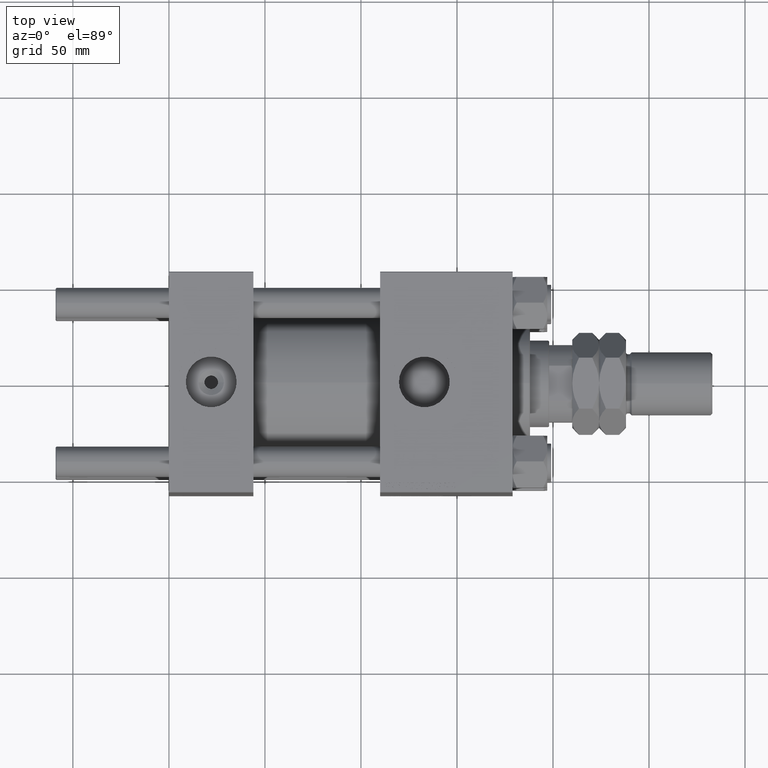
[diagram: clean part render]
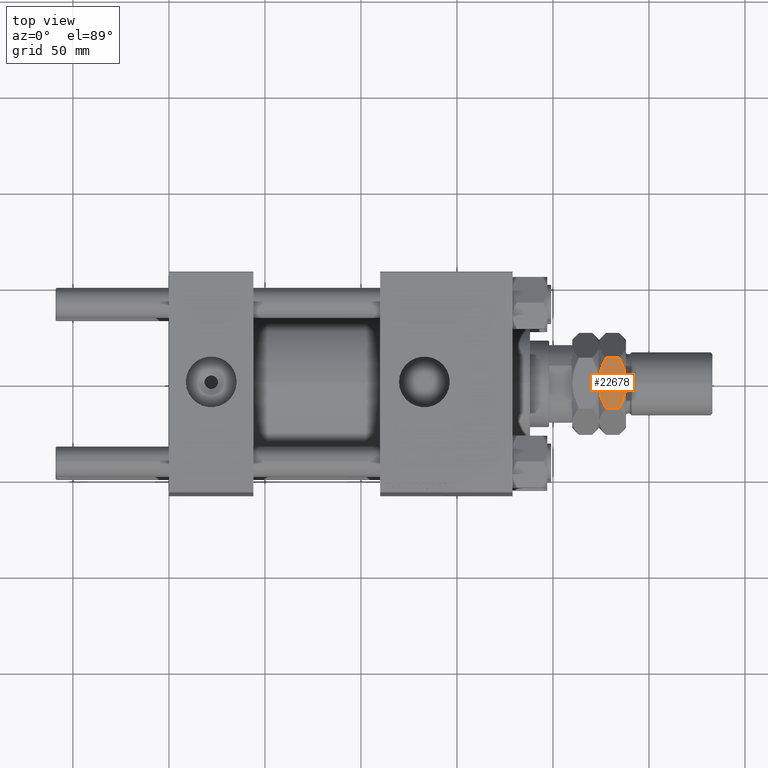
[diagram: same view with one face highlighted and labeled with its STEP entity id]
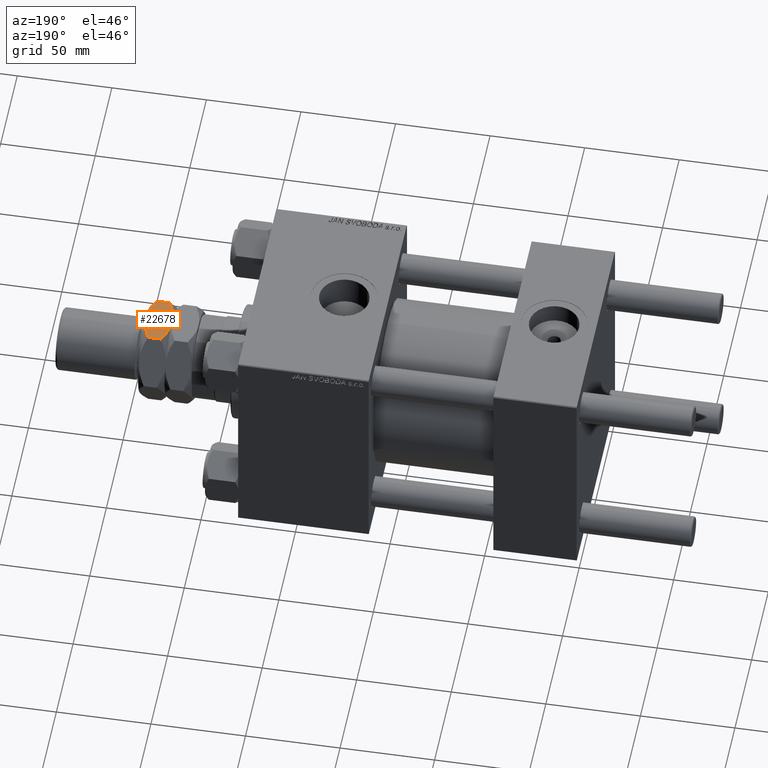
[diagram: same view with one face highlighted and labeled with its STEP entity id]
A machine part, top view. The second image highlights one B-rep face of the part: STEP entity #22678.
A second angle (auxiliary view) of the same face is appended — the face is thin or edge-on in the first view.
In plain terms, the highlighted planar face has unit normal (-0, 0, -1).
Its self-contained STEP definition (entity closure, byte-faithful):
#94 = VERTEX_POINT ( 'NONE', #17463 ) ;
#1394 = CARTESIAN_POINT ( 'NONE',  ( -23.00000000000000355, -11.19584287463890782, 25.43887941699775368 ) ) ;
#2369 = CARTESIAN_POINT ( 'NONE',  ( -23.00000000000000711, -7.384104261058126895, 15.15038048687418559 ) ) ;
#3577 = B_SPLINE_CURVE_WITH_KNOTS ( 'NONE', 3,
 ( #14829, #10732, #51657, #9916, #27394, #6098, #38849, #14282, #26303, #43739, #18123, #39119 ),
 .UNSPECIFIED., .F., .F.,
 ( 4, 2, 2, 2, 2, 4 ),
 ( 0.04777139595992687532, 0.04949914554651194121, 0.05122689513309700016, 0.05468239430626712499, 0.05813789347943724983, 0.06159339265260737467 ),
 .UNSPECIFIED. ) ;
#4446 = AXIS2_PLACEMENT_3D ( 'NONE', #38325, #30154, #14025 ) ;
#4813 = LINE ( 'NONE', #12750, #44047 ) ;
#4931 = CARTESIAN_POINT ( 'NONE',  ( -23.00000000000000000, -13.27905619136138959, 24.44188761727722436 ) ) ;
#5293 = FACE_OUTER_BOUND ( 'NONE', #47588, .T. ) ;
#5776 = VERTEX_POINT ( 'NONE', #29137 ) ;
#6098 = CARTESIAN_POINT ( 'NONE',  ( -23.00000000000000355, 4.611258391204995810, 14.43061535182026667 ) ) ;
#6727 = CARTESIAN_POINT ( 'NONE',  ( -22.99999999999999645, 3.004629197474316090E-15, 14.00000000000000000 ) ) ;
#7253 = VERTEX_POINT ( 'NONE', #32930 ) ;
#7661 = CARTESIAN_POINT ( 'NONE',  ( -23.00000000000000000, 13.27905619136138959, 24.44188761727722792 ) ) ;
#7905 = EDGE_CURVE ( 'NONE', #38497, #94, #10017, .T. ) ;
#7937 = B_SPLINE_CURVE_WITH_KNOTS ( 'NONE', 3,
 ( #32103, #10533, #23107, #44084, #48437, #35923, #2369, #19010, #10805, #6727 ),
 .UNSPECIFIED., .F., .F.,
 ( 4, 2, 2, 2, 4 ),
 ( 0.03391842154671734916, 0.03738166515001972723, 0.03911328695167091973, 0.04084490875332210530, 0.04777139595992687532 ),
 .UNSPECIFIED. ) ;
#8374 = DIRECTION ( 'NONE',  ( -0.000000000000000000, -0.000000000000000000, -1.000000000000000000 ) ) ;
#8589 = CARTESIAN_POINT ( 'NONE',  ( -22.99999999999999645, 0.000000000000000000, 28.00000000000000000 ) ) ;
#9289 = CARTESIAN_POINT ( 'NONE',  ( -23.00000000000000711, -0.5819124658698872077, 28.00000000000000000 ) ) ;
#9392 = CARTESIAN_POINT ( 'NONE',  ( -22.99999999999999289, 9.585014738077486385, 26.08755915768734468 ) ) ;
#9916 = CARTESIAN_POINT ( 'NONE',  ( -23.00000000000000000, 2.327345773459499334, 14.11023447772089945 ) ) ;
#10017 = LINE ( 'NONE', #22857, #47533 ) ;
#10533 = CARTESIAN_POINT ( 'NONE',  ( -22.99999999999999289, -12.24963129209448276, 17.04339993308932222 ) ) ;
#10732 = CARTESIAN_POINT ( 'NONE',  ( -23.00000000000001066, 0.5819124658698887620, 14.00000000000000711 ) ) ;
#10805 = CARTESIAN_POINT ( 'NONE',  ( -23.00000000000000355, -2.332866569036886606, 14.00000000000000355 ) ) ;
#11913 = ORIENTED_EDGE ( 'NONE', *, *, #52406, .F. ) ;
#12429 = CARTESIAN_POINT ( 'NONE',  ( -23.00000000000000711, 4.604003285773378806, 27.64082713328069119 ) ) ;
#12750 = CARTESIAN_POINT ( 'NONE',  ( -23.00000000000000000, -13.27905619136138959, 28.00000000000000000 ) ) ;
#13382 = CARTESIAN_POINT ( 'NONE',  ( -22.99999999999999289, -2.327345773459494005, 27.88976552227909878 ) ) ;
#14025 = DIRECTION ( 'NONE',  ( -0.000000000000000000, 0.000000000000000000, -1.000000000000000000 ) ) ;
#14215 = EDGE_CURVE ( 'NONE', #7253, #5776, #7937, .T. ) ;
#14282 = CARTESIAN_POINT ( 'NONE',  ( -23.00000000000000355, 7.945847288453419921, 15.31073039083534226 ) ) ;
#14829 = CARTESIAN_POINT ( 'NONE',  ( -22.99999999999999645, 3.004629197474316090E-15, 14.00000000000000000 ) ) ;
#17316 = CARTESIAN_POINT ( 'NONE',  ( -22.99999999999999645, 11.20010744839417427, 25.43691701641144221 ) ) ;
#17463 = CARTESIAN_POINT ( 'NONE',  ( -23.00000000000000000, 13.27905619136138959, 17.55811238272277564 ) ) ;
#18123 = CARTESIAN_POINT ( 'NONE',  ( -23.00000000000000711, 12.24912306375521531, 17.04314581891969382 ) ) ;
#19010 = CARTESIAN_POINT ( 'NONE',  ( -23.00000000000000355, -4.604003285773385024, 14.35917286671931059 ) ) ;
#21412 = ORIENTED_EDGE ( 'NONE', *, *, #36218, .F. ) ;
#21840 = CARTESIAN_POINT ( 'NONE',  ( -23.00000000000000711, -12.24912306375522242, 24.95685418108031328 ) ) ;
#22396 = CARTESIAN_POINT ( 'NONE',  ( -22.99999999999999645, 0.000000000000000000, 28.00000000000000000 ) ) ;
#22678 = ADVANCED_FACE ( 'NONE', ( #5293 ), #51393, .F. ) ;
#22857 = CARTESIAN_POINT ( 'NONE',  ( -23.00000000000000000, 13.27905619136138959, 28.00000000000000000 ) ) ;
#23107 = CARTESIAN_POINT ( 'NONE',  ( -23.00000000000000000, -11.20010744839417782, 16.56308298358856135 ) ) ;
#24996 = ORIENTED_EDGE ( 'NONE', *, *, #42246, .F. ) ;
#25508 = CARTESIAN_POINT ( 'NONE',  ( -23.00000000000000711, 2.332866569036887938, 27.99999999999999645 ) ) ;
#26303 = CARTESIAN_POINT ( 'NONE',  ( -23.00000000000000355, 9.037287856520078932, 15.69203433471579778 ) ) ;
#27394 = CARTESIAN_POINT ( 'NONE',  ( -23.00000000000000355, 2.901718448039537712, 14.17547147104708571 ) ) ;
#28836 = B_SPLINE_CURVE_WITH_KNOTS ( 'NONE', 3,
 ( #50314, #29618, #17316, #9392, #45963, #41872, #38323, #12429, #25508, #8589 ),
 .UNSPECIFIED., .F., .F.,
 ( 4, 2, 2, 2, 4 ),
 ( 0.03391842154671734916, 0.03738166515001972723, 0.03911328695167091973, 0.04084490875332210530, 0.04777139595992686838 ),
 .UNSPECIFIED. ) ;
#29137 = CARTESIAN_POINT ( 'NONE',  ( -22.99999999999999645, 3.004629197474316090E-15, 14.00000000000000000 ) ) ;
#29618 = CARTESIAN_POINT ( 'NONE',  ( -23.00000000000000000, 12.24963129209447565, 24.95660006691067778 ) ) ;
#30042 = CARTESIAN_POINT ( 'NONE',  ( -23.00000000000000000, -2.901718448039539044, 27.82452852895291429 ) ) ;
#30154 = DIRECTION ( 'NONE',  ( 1.000000000000000000, 0.000000000000000000, -0.000000000000000000 ) ) ;
#30860 = CARTESIAN_POINT ( 'NONE',  ( -23.00000000000000355, -9.037287856520077156, 26.30796566528420399 ) ) ;
#32049 = ORIENTED_EDGE ( 'NONE', *, *, #14215, .F. ) ;
#32103 = CARTESIAN_POINT ( 'NONE',  ( -23.00000000000000000, -13.27905619136138959, 17.55811238272277564 ) ) ;
#32783 = EDGE_CURVE ( 'NONE', #42288, #7253, #4813, .T. ) ;
#32930 = CARTESIAN_POINT ( 'NONE',  ( -23.00000000000000000, -13.27905619136138959, 17.55811238272277564 ) ) ;
#34681 = CARTESIAN_POINT ( 'NONE',  ( -22.99999999999999645, -7.945847288453418145, 26.68926960916466129 ) ) ;
#35923 = CARTESIAN_POINT ( 'NONE',  ( -23.00000000000001066, -7.937214062685167271, 15.32555602763360092 ) ) ;
#36218 = EDGE_CURVE ( 'NONE', #50381, #42288, #46937, .T. ) ;
#38323 = CARTESIAN_POINT ( 'NONE',  ( -22.99999999999999645, 7.384104261058114460, 26.84961951312581618 ) ) ;
#38325 = CARTESIAN_POINT ( 'NONE',  ( -23.00000000000000000, 13.27905619136138959, 28.00000000000000000 ) ) ;
#38497 = VERTEX_POINT ( 'NONE', #7661 ) ;
#38849 = CARTESIAN_POINT ( 'NONE',  ( -23.00000000000000711, 5.732845801352522308, 14.67996292198422736 ) ) ;
#39025 = CARTESIAN_POINT ( 'NONE',  ( -23.00000000000000000, -1.168850493887465758, 27.97756288437166461 ) ) ;
#39119 = CARTESIAN_POINT ( 'NONE',  ( -23.00000000000000000, 13.27905619136138959, 17.55811238272277564 ) ) ;
#41872 = CARTESIAN_POINT ( 'NONE',  ( -23.00000000000000000, 7.937214062685161942, 26.67444397236640086 ) ) ;
#42246 = EDGE_CURVE ( 'NONE', #5776, #94, #3577, .T. ) ;
#42288 = VERTEX_POINT ( 'NONE', #44535 ) ;
#42306 = CARTESIAN_POINT ( 'NONE',  ( -23.00000000000000000, -5.732845801352522308, 27.32003707801577619 ) ) ;
#42584 = ORIENTED_EDGE ( 'NONE', *, *, #7905, .T. ) ;
#43687 = ORIENTED_EDGE ( 'NONE', *, *, #32783, .F. ) ;
#43739 = CARTESIAN_POINT ( 'NONE',  ( -23.00000000000000355, 11.19584287463890959, 16.56112058300224632 ) ) ;
#44047 = VECTOR ( 'NONE', #8374, 1000.000000000000000 ) ;
#44084 = CARTESIAN_POINT ( 'NONE',  ( -22.99999999999999289, -9.585014738077491714, 15.91244084231266420 ) ) ;
#44535 = CARTESIAN_POINT ( 'NONE',  ( -23.00000000000000000, -13.27905619136138959, 24.44188761727722436 ) ) ;
#45963 = CARTESIAN_POINT ( 'NONE',  ( -23.00000000000000000, 9.038140464506012606, 26.29329459371818345 ) ) ;
#46937 = B_SPLINE_CURVE_WITH_KNOTS ( 'NONE', 3,
 ( #22396, #9289, #39025, #13382, #30042, #51557, #42306, #34681, #30860, #1394, #21840, #4931 ),
 .UNSPECIFIED., .F., .F.,
 ( 4, 2, 2, 2, 2, 4 ),
 ( 0.04777139595992686838, 0.04949914554651193427, 0.05122689513309699322, 0.05468239430626712499, 0.05813789347943724983, 0.06159339265260738161 ),
 .UNSPECIFIED. ) ;
#47533 = VECTOR ( 'NONE', #47664, 1000.000000000000000 ) ;
#47588 = EDGE_LOOP ( 'NONE', ( #32049, #43687, #21412, #11913, #42584, #24996 ) ) ;
#47664 = DIRECTION ( 'NONE',  ( -0.000000000000000000, -0.000000000000000000, -1.000000000000000000 ) ) ;
#48437 = CARTESIAN_POINT ( 'NONE',  ( -23.00000000000000355, -9.038140464506014382, 15.70670540628181477 ) ) ;
#50314 = CARTESIAN_POINT ( 'NONE',  ( -23.00000000000000000, 13.27905619136138959, 24.44188761727722792 ) ) ;
#50381 = VERTEX_POINT ( 'NONE', #53746 ) ;
#51393 = PLANE ( 'NONE',  #4446 ) ;
#51557 = CARTESIAN_POINT ( 'NONE',  ( -23.00000000000000355, -4.611258391204997586, 27.56938464817973511 ) ) ;
#51657 = CARTESIAN_POINT ( 'NONE',  ( -23.00000000000000000, 1.168850493887471087, 14.02243711562833184 ) ) ;
#52406 = EDGE_CURVE ( 'NONE', #38497, #50381, #28836, .T. ) ;
#53746 = CARTESIAN_POINT ( 'NONE',  ( -22.99999999999999645, 0.000000000000000000, 28.00000000000000000 ) ) ;